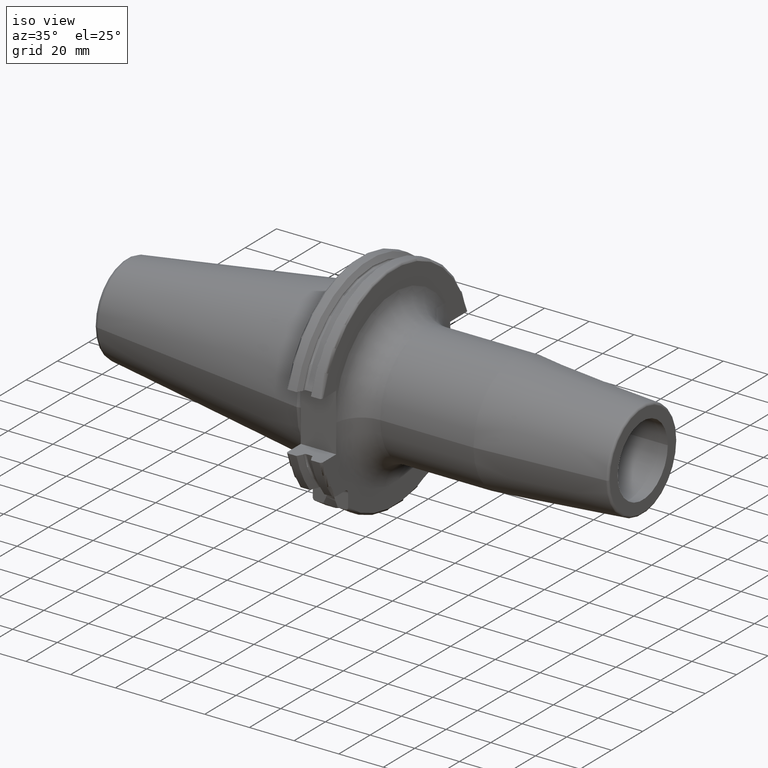
[diagram: clean part render]
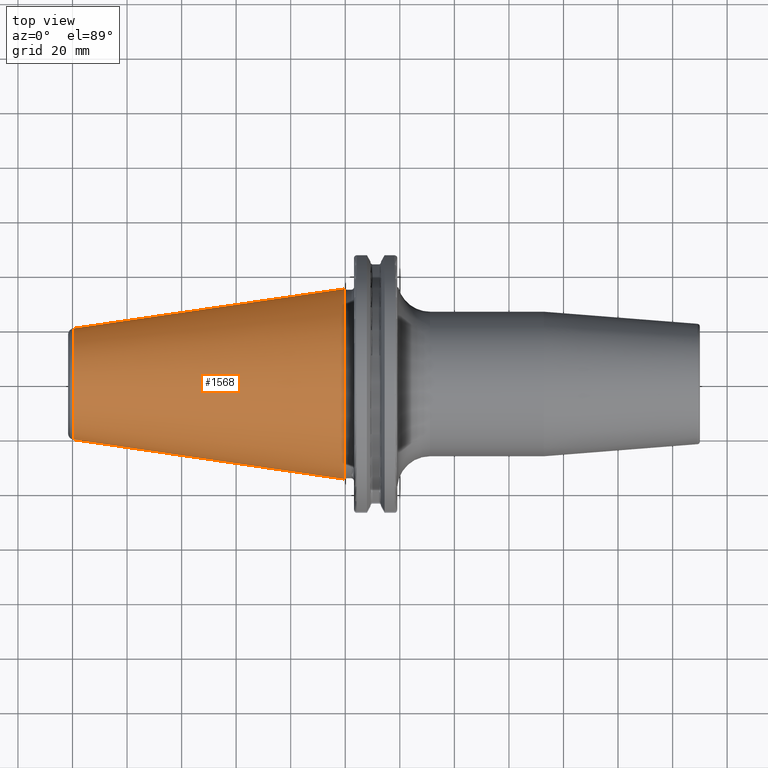
[diagram: tour spotlight — one face highlighted and labeled with its STEP entity id]
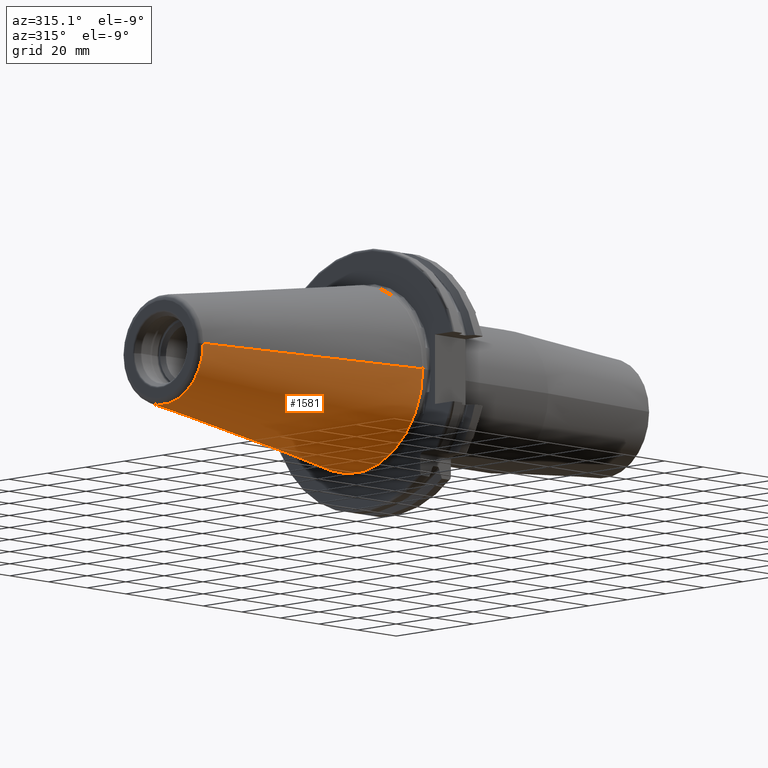
[diagram: tour spotlight — one face highlighted and labeled with its STEP entity id]
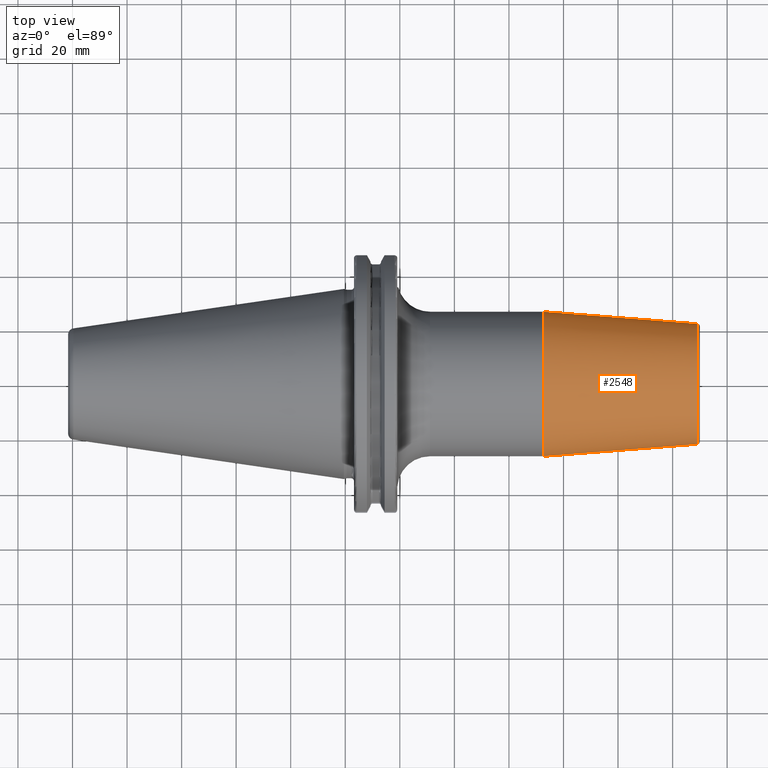
[diagram: tour spotlight — one face highlighted and labeled with its STEP entity id]
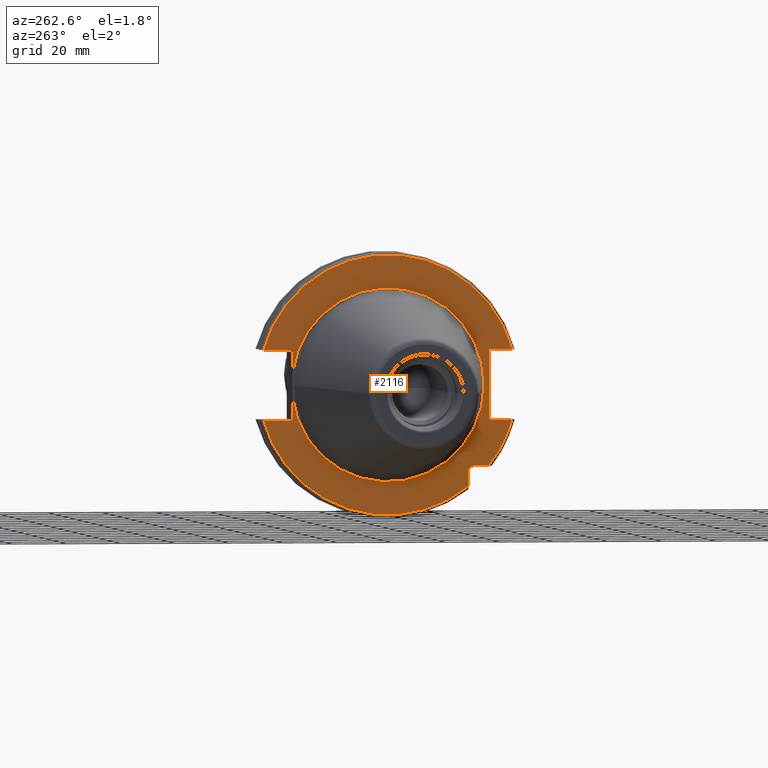
[diagram: tour spotlight — one face highlighted and labeled with its STEP entity id]
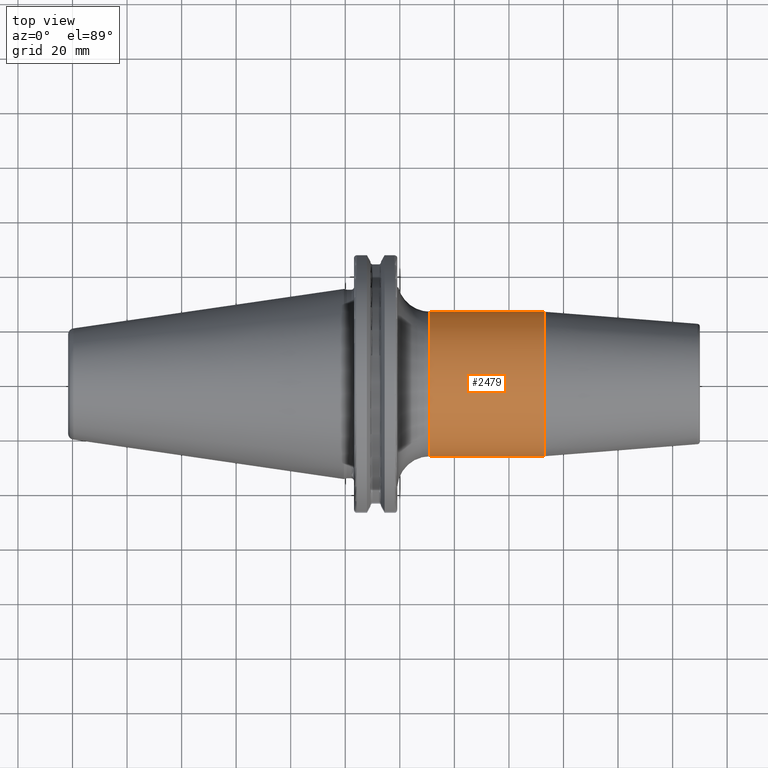
[diagram: tour spotlight — one face highlighted and labeled with its STEP entity id]
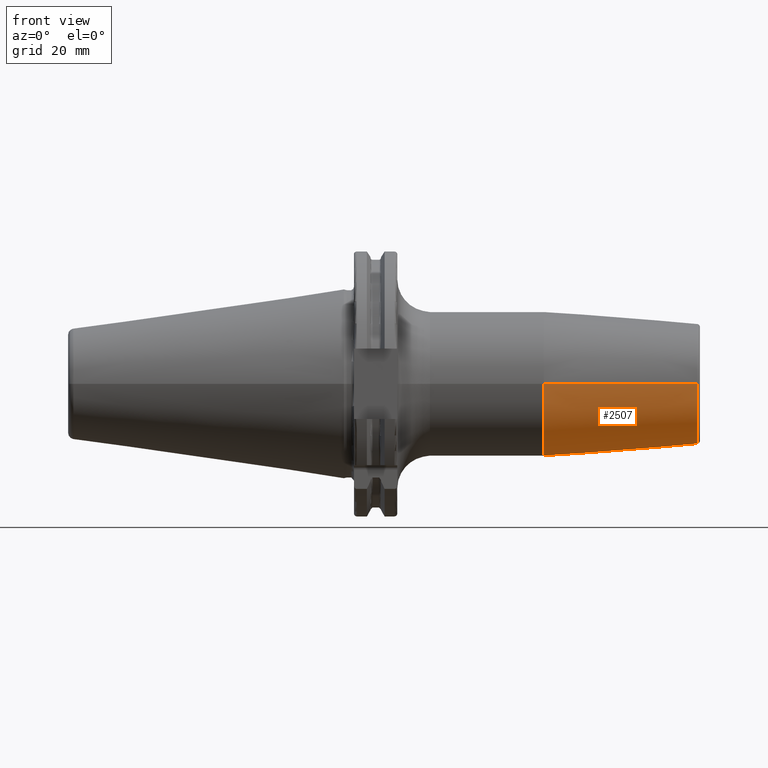
[diagram: tour spotlight — one face highlighted and labeled with its STEP entity id]
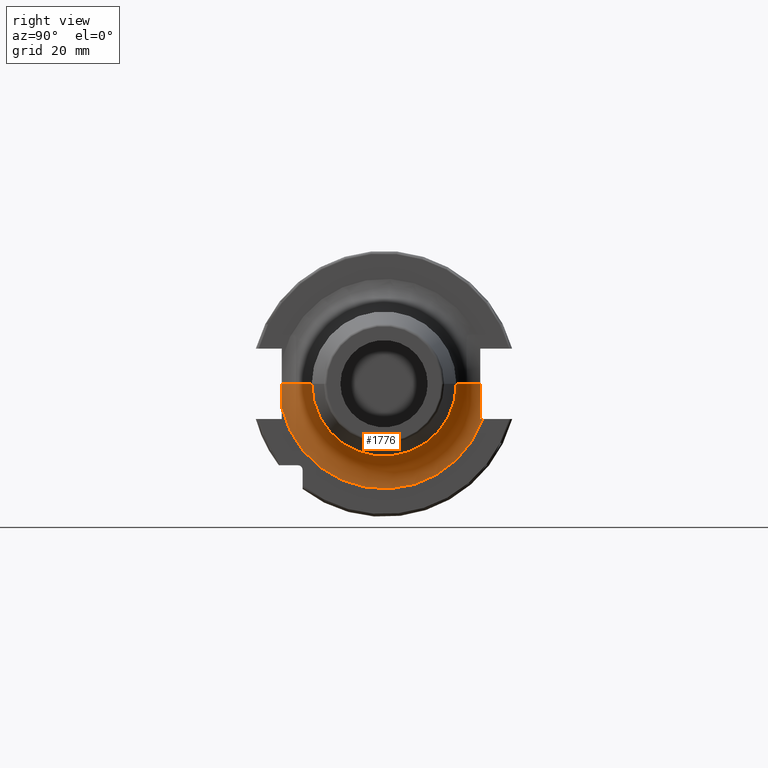
[diagram: tour spotlight — one face highlighted and labeled with its STEP entity id]
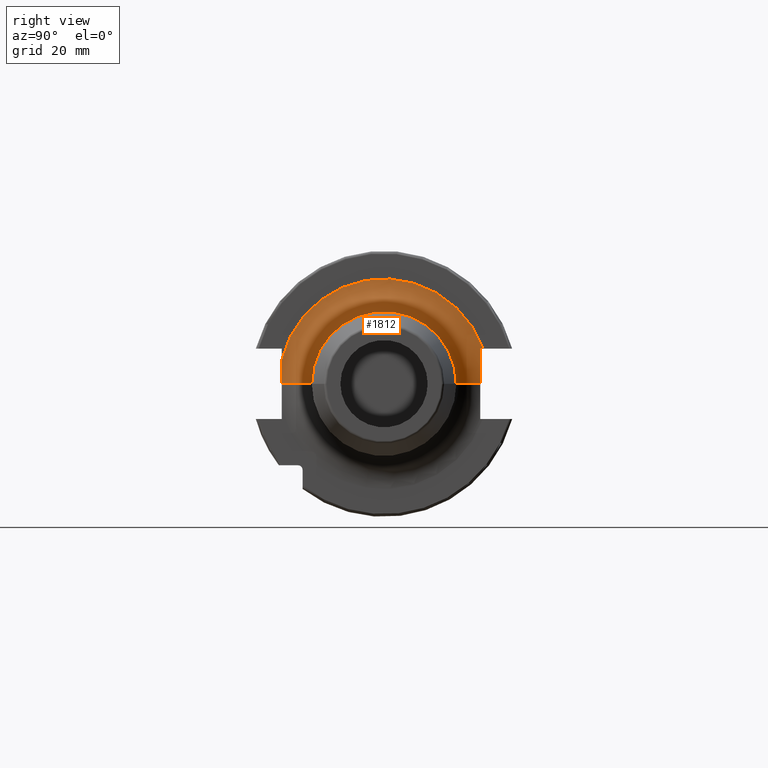
[diagram: tour spotlight — one face highlighted and labeled with its STEP entity id]
A machine part: a face-by-face anatomy tour. The part has 94 B-rep faces; the first image is the clean iso view, then the 8 largest visible faces are spotlighted one at a time (largest first), each with its STEP entity span.

Face 1 — top view, entity #1568. In plain terms, the highlighted conical surface has half-angle 8.298 deg.
Definition (entity closure, byte-faithful):
#37=CARTESIAN_POINT('',(-9.967471700563E1,0.E0,0.E0));
#38=DIRECTION('',(1.E0,0.E0,0.E0));
#39=DIRECTION('',(0.E0,1.E0,0.E0));
#40=AXIS2_PLACEMENT_3D('',#37,#38,#39);
#42=CARTESIAN_POINT('',(-4.896823332305E-1,0.E0,0.E0));
#43=DIRECTION('',(1.E0,0.E0,0.E0));
#44=DIRECTION('',(0.E0,1.E0,0.E0));
#45=AXIS2_PLACEMENT_3D('',#42,#43,#44);
#47=DIRECTION('',(-9.895312636440E-1,-1.443186691705E-1,0.E0));
#48=VECTOR('',#47,1.002343617797E2);
#49=CARTESIAN_POINT('',(-4.896823332305E-1,3.485358204157E1,0.E0));
#50=LINE('',#49,#48);
#51=DIRECTION('',(-9.895312636440E-1,1.443186691705E-1,0.E0));
#52=VECTOR('',#51,1.002343617797E2);
#53=CARTESIAN_POINT('',(-4.896823332305E-1,-3.485358204157E1,0.E0));
#54=LINE('',#53,#52);
#1252=CARTESIAN_POINT('',(-9.967471700563E1,2.038789234437E1,0.E0));
#1254=VERTEX_POINT('',#1252);
#1256=CARTESIAN_POINT('',(-9.967471700563E1,-2.038789234437E1,0.E0));
#1258=VERTEX_POINT('',#1256);
#1320=CARTESIAN_POINT('',(-4.896823332305E-1,3.485358204157E1,0.E0));
#1321=VERTEX_POINT('',#1320);
#1322=CARTESIAN_POINT('',(-4.896823332305E-1,-3.485358204157E1,0.E0));
#1323=VERTEX_POINT('',#1322);
#1554=CARTESIAN_POINT('',(-5.008219966943E1,0.E0,0.E0));
#1555=DIRECTION('',(1.E0,0.E0,0.E0));
#1556=DIRECTION('',(0.E0,-1.E0,0.E0));
#1557=AXIS2_PLACEMENT_3D('',#1554,#1555,#1556);
#1558=CONICAL_SURFACE('',#1557,2.762073719297E1,8.297826828206E0);
#1560=ORIENTED_EDGE('',*,*,#1559,.F.);
#1562=ORIENTED_EDGE('',*,*,#1561,.T.);
#1564=ORIENTED_EDGE('',*,*,#1563,.T.);
#1565=ORIENTED_EDGE('',*,*,#1547,.F.);
#1566=EDGE_LOOP('',(#1560,#1562,#1564,#1565));
#1567=FACE_OUTER_BOUND('',#1566,.F.);
#1568=ADVANCED_FACE('',(#1567),#1558,.T.);
#41=CIRCLE('',#40,2.038789234437E1);
#46=CIRCLE('',#45,3.485358204157E1);
#1547=EDGE_CURVE('',#1254,#1258,#41,.T.);
#1559=EDGE_CURVE('',#1321,#1254,#50,.T.);
#1561=EDGE_CURVE('',#1321,#1323,#46,.T.);
#1563=EDGE_CURVE('',#1323,#1258,#54,.T.);

Face 2 — auxiliary view, entity #1581. In plain terms, the highlighted conical surface has half-angle 8.298 deg.
Definition (entity closure, byte-faithful):
#32=CARTESIAN_POINT('',(-9.967471700563E1,0.E0,0.E0));
#33=DIRECTION('',(-1.E0,0.E0,0.E0));
#34=DIRECTION('',(0.E0,1.E0,0.E0));
#35=AXIS2_PLACEMENT_3D('',#32,#33,#34);
#47=DIRECTION('',(-9.895312636440E-1,-1.443186691705E-1,0.E0));
#48=VECTOR('',#47,1.002343617797E2);
#49=CARTESIAN_POINT('',(-4.896823332305E-1,3.485358204157E1,0.E0));
#50=LINE('',#49,#48);
#51=DIRECTION('',(-9.895312636440E-1,1.443186691705E-1,0.E0));
#52=VECTOR('',#51,1.002343617797E2);
#53=CARTESIAN_POINT('',(-4.896823332305E-1,-3.485358204157E1,0.E0));
#54=LINE('',#53,#52);
#55=CARTESIAN_POINT('',(-4.896823332305E-1,0.E0,0.E0));
#56=DIRECTION('',(-1.E0,0.E0,0.E0));
#57=DIRECTION('',(0.E0,1.E0,0.E0));
#58=AXIS2_PLACEMENT_3D('',#55,#56,#57);
#1252=CARTESIAN_POINT('',(-9.967471700563E1,2.038789234437E1,0.E0));
#1254=VERTEX_POINT('',#1252);
#1256=CARTESIAN_POINT('',(-9.967471700563E1,-2.038789234437E1,0.E0));
#1258=VERTEX_POINT('',#1256);
#1320=CARTESIAN_POINT('',(-4.896823332305E-1,3.485358204157E1,0.E0));
#1321=VERTEX_POINT('',#1320);
#1322=CARTESIAN_POINT('',(-4.896823332305E-1,-3.485358204157E1,0.E0));
#1323=VERTEX_POINT('',#1322);
#1569=CARTESIAN_POINT('',(-5.008219966943E1,0.E0,0.E0));
#1570=DIRECTION('',(1.E0,0.E0,0.E0));
#1571=DIRECTION('',(0.E0,-1.E0,0.E0));
#1572=AXIS2_PLACEMENT_3D('',#1569,#1570,#1571);
#1573=CONICAL_SURFACE('',#1572,2.762073719297E1,8.297826828206E0);
#1574=ORIENTED_EDGE('',*,*,#1559,.T.);
#1575=ORIENTED_EDGE('',*,*,#1536,.T.);
#1576=ORIENTED_EDGE('',*,*,#1563,.F.);
#1578=ORIENTED_EDGE('',*,*,#1577,.F.);
#1579=EDGE_LOOP('',(#1574,#1575,#1576,#1578));
#1580=FACE_OUTER_BOUND('',#1579,.F.);
#1581=ADVANCED_FACE('',(#1580),#1573,.T.);
#36=CIRCLE('',#35,2.038789234437E1);
#59=CIRCLE('',#58,3.485358204157E1);
#1536=EDGE_CURVE('',#1254,#1258,#36,.T.);
#1559=EDGE_CURVE('',#1321,#1254,#50,.T.);
#1563=EDGE_CURVE('',#1323,#1258,#54,.T.);
#1577=EDGE_CURVE('',#1321,#1323,#59,.T.);

Face 3 — top view, entity #2548. In plain terms, the highlighted conical surface has half-angle 4.5 deg.
Definition (entity closure, byte-faithful):
#957=CARTESIAN_POINT('',(7.282207868721E1,0.E0,0.E0));
#958=DIRECTION('',(1.E0,0.E0,0.E0));
#959=DIRECTION('',(0.E0,1.E0,0.E0));
#960=AXIS2_PLACEMENT_3D('',#957,#958,#959);
#985=DIRECTION('',(-9.969173337331E-1,7.845909572785E-2,2.346469821693E-14));
#986=VECTOR('',#985,5.643033630266E1);
#987=CARTESIAN_POINT('',(1.290784590957E2,2.207252684207E1,
-1.320875497604E-12));
#988=LINE('',#987,#986);
#989=DIRECTION('',(-9.969173337331E-1,-7.845909572785E-2,-2.336591030080E-14));
#990=VECTOR('',#989,5.643033630266E1);
#991=CARTESIAN_POINT('',(1.290784590957E2,-2.207252684207E1,
1.315300862274E-12));
#992=LINE('',#991,#990);
#1003=CARTESIAN_POINT('',(1.290784590957E2,0.E0,0.E0));
#1004=DIRECTION('',(-1.E0,0.E0,0.E0));
#1005=DIRECTION('',(0.E0,-1.E0,0.E0));
#1006=AXIS2_PLACEMENT_3D('',#1003,#1004,#1005);
#1472=CARTESIAN_POINT('',(7.282207868721E1,2.65E1,0.E0));
#1473=CARTESIAN_POINT('',(7.282207868721E1,-2.65E1,0.E0));
#1474=VERTEX_POINT('',#1472);
#1475=VERTEX_POINT('',#1473);
#1476=CARTESIAN_POINT('',(1.290784590957E2,2.207252684207E1,0.E0));
#1477=CARTESIAN_POINT('',(1.290784590957E2,-2.207252684207E1,0.E0));
#1478=VERTEX_POINT('',#1476);
#1479=VERTEX_POINT('',#1477);
#2537=CARTESIAN_POINT('',(1.009502688915E2,0.E0,0.E0));
#2538=DIRECTION('',(-1.E0,0.E0,0.E0));
#2539=DIRECTION('',(0.E0,1.E0,0.E0));
#2540=AXIS2_PLACEMENT_3D('',#2537,#2538,#2539);
#2541=CONICAL_SURFACE('',#2540,2.428626342104E1,4.5E0);
#2542=ORIENTED_EDGE('',*,*,#2528,.F.);
#2543=ORIENTED_EDGE('',*,*,#2503,.T.);
#2544=ORIENTED_EDGE('',*,*,#2473,.F.);
#2545=ORIENTED_EDGE('',*,*,#2500,.F.);
#2546=EDGE_LOOP('',(#2542,#2543,#2544,#2545));
#2547=FACE_OUTER_BOUND('',#2546,.F.);
#2548=ADVANCED_FACE('',(#2547),#2541,.T.);
#961=CIRCLE('',#960,2.65E1);
#1007=CIRCLE('',#1006,2.207252684207E1);
#2473=EDGE_CURVE('',#1474,#1475,#961,.T.);
#2500=EDGE_CURVE('',#1478,#1474,#988,.T.);
#2503=EDGE_CURVE('',#1479,#1475,#992,.T.);
#2528=EDGE_CURVE('',#1479,#1478,#1007,.T.);

Face 4 — auxiliary view, entity #2116. In plain terms, the highlighted planar face has unit normal (1, 0, 0).
Definition (entity closure, byte-faithful):
#117=CARTESIAN_POINT('',(3.2E0,0.E0,0.E0));
#118=DIRECTION('',(-1.E0,0.E0,0.E0));
#119=DIRECTION('',(0.E0,9.922698524245E-1,-1.240989120402E-1));
#120=AXIS2_PLACEMENT_3D('',#117,#118,#119);
#499=DIRECTION('',(0.E0,-1.E0,0.E0));
#500=VECTOR('',#499,5.653810627237E0);
#501=CARTESIAN_POINT('',(3.2E0,-3.16E1,-2.985E1));
#502=LINE('',#501,#500);
#503=DIRECTION('',(0.E0,0.E0,1.E0));
#504=VECTOR('',#503,5.653810627237E0);
#505=CARTESIAN_POINT('',(3.2E0,-2.985E1,-3.725381062724E1));
#506=LINE('',#505,#504);
#507=CARTESIAN_POINT('',(3.2E0,0.E0,0.E0));
#508=DIRECTION('',(-1.E0,0.E0,0.E0));
#509=DIRECTION('',(0.E0,9.627964123359E-1,-2.702278083268E-1));
#510=AXIS2_PLACEMENT_3D('',#507,#508,#509);
#512=DIRECTION('',(0.E0,-1.E0,0.E0));
#513=VECTOR('',#512,1.066149373389E1);
#514=CARTESIAN_POINT('',(3.2E0,4.596149373389E1,-1.29E1));
#515=LINE('',#514,#513);
#516=DIRECTION('',(0.E0,0.E0,-1.E0));
#517=VECTOR('',#516,8.485181204172E0);
#518=CARTESIAN_POINT('',(3.2E0,3.53E1,-4.414818795828E0));
#519=LINE('',#518,#517);
#520=DIRECTION('',(0.E0,0.E0,-1.E0));
#521=VECTOR('',#520,8.485181204172E0);
#522=CARTESIAN_POINT('',(3.2E0,3.53E1,1.29E1));
#523=LINE('',#522,#521);
#524=DIRECTION('',(0.E0,-1.E0,0.E0));
#525=VECTOR('',#524,1.066149373389E1);
#526=CARTESIAN_POINT('',(3.2E0,4.596149373389E1,1.29E1));
#527=LINE('',#526,#525);
#528=CARTESIAN_POINT('',(3.2E0,0.E0,0.E0));
#529=DIRECTION('',(1.E0,0.E0,0.E0));
#530=DIRECTION('',(0.E0,9.627964123359E-1,2.702278083268E-1));
#531=AXIS2_PLACEMENT_3D('',#528,#529,#530);
#533=DIRECTION('',(0.E0,1.E0,0.E0));
#534=VECTOR('',#533,8.461493733886E0);
#535=CARTESIAN_POINT('',(3.2E0,-4.596149373389E1,1.29E1));
#536=LINE('',#535,#534);
#537=DIRECTION('',(0.E0,0.E0,1.E0));
#538=VECTOR('',#537,2.58E1);
#539=CARTESIAN_POINT('',(3.2E0,-3.75E1,-1.29E1));
#540=LINE('',#539,#538);
#541=DIRECTION('',(0.E0,1.E0,0.E0));
#542=VECTOR('',#541,8.461493733886E0);
#543=CARTESIAN_POINT('',(3.2E0,-4.596149373389E1,-1.29E1));
#544=LINE('',#543,#542);
#545=CARTESIAN_POINT('',(3.2E0,0.E0,0.E0));
#546=DIRECTION('',(-1.E0,0.E0,0.E0));
#547=DIRECTION('',(0.E0,-7.803888060170E-1,-6.252945797329E-1));
#548=AXIS2_PLACEMENT_3D('',#545,#546,#547);
#559=CARTESIAN_POINT('',(3.2E0,-3.16E1,-3.16E1));
#560=DIRECTION('',(1.E0,0.E0,0.E0));
#561=DIRECTION('',(0.E0,1.E0,0.E0));
#562=AXIS2_PLACEMENT_3D('',#559,#560,#561);
#725=CARTESIAN_POINT('',(3.2E0,-3.725381062724E1,-2.985E1));
#947=CARTESIAN_POINT('',(3.2E0,0.E0,0.E0));
#948=DIRECTION('',(1.E0,0.E0,0.E0));
#949=DIRECTION('',(0.E0,9.922698524245E-1,1.240989120402E-1));
#950=AXIS2_PLACEMENT_3D('',#947,#948,#949);
#1264=CARTESIAN_POINT('',(3.2E0,-3.5575E1,0.E0));
#1266=VERTEX_POINT('',#1264);
#1390=CARTESIAN_POINT('',(3.2E0,4.596149373389E1,1.29E1));
#1391=CARTESIAN_POINT('',(3.2E0,3.53E1,1.29E1));
#1392=VERTEX_POINT('',#1390);
#1393=VERTEX_POINT('',#1391);
#1394=CARTESIAN_POINT('',(3.2E0,3.53E1,4.414818795828E0));
#1395=VERTEX_POINT('',#1394);
#1396=CARTESIAN_POINT('',(3.2E0,3.53E1,-4.414818795828E0));
#1397=CARTESIAN_POINT('',(3.2E0,3.53E1,-1.29E1));
#1398=VERTEX_POINT('',#1396);
#1399=VERTEX_POINT('',#1397);
#1400=CARTESIAN_POINT('',(3.2E0,4.596149373389E1,-1.29E1));
#1401=VERTEX_POINT('',#1400);
#1402=CARTESIAN_POINT('',(3.2E0,-4.596149373389E1,-1.29E1));
#1403=CARTESIAN_POINT('',(3.2E0,-3.75E1,-1.29E1));
#1404=VERTEX_POINT('',#1402);
#1405=VERTEX_POINT('',#1403);
#1406=CARTESIAN_POINT('',(3.2E0,-3.75E1,1.29E1));
#1407=VERTEX_POINT('',#1406);
#1408=CARTESIAN_POINT('',(3.2E0,-4.596149373389E1,1.29E1));
#1409=VERTEX_POINT('',#1408);
#1443=CARTESIAN_POINT('',(3.2E0,-2.985E1,-3.725381062724E1));
#1444=VERTEX_POINT('',#1443);
#1449=CARTESIAN_POINT('',(3.2E0,-2.985E1,-3.16E1));
#1450=CARTESIAN_POINT('',(3.2E0,-3.16E1,-2.985E1));
#1451=VERTEX_POINT('',#1449);
#1452=VERTEX_POINT('',#1450);
#1471=VERTEX_POINT('',#725);
#2087=CARTESIAN_POINT('',(3.2E0,0.E0,0.E0));
#2088=DIRECTION('',(1.E0,0.E0,0.E0));
#2089=DIRECTION('',(0.E0,-1.E0,0.E0));
#2090=AXIS2_PLACEMENT_3D('',#2087,#2088,#2089);
#2091=PLANE('',#2090);
#2093=ORIENTED_EDGE('',*,*,#2092,.F.);
#2095=ORIENTED_EDGE('',*,*,#2094,.F.);
#2097=ORIENTED_EDGE('',*,*,#2096,.F.);
#2099=ORIENTED_EDGE('',*,*,#2098,.F.);
#2100=ORIENTED_EDGE('',*,*,#1688,.T.);
#2101=ORIENTED_EDGE('',*,*,#1673,.F.);
#2102=ORIENTED_EDGE('',*,*,#1650,.T.);
#2104=ORIENTED_EDGE('',*,*,#2103,.F.);
#2105=ORIENTED_EDGE('',*,*,#1668,.F.);
#2106=ORIENTED_EDGE('',*,*,#1843,.F.);
#2107=ORIENTED_EDGE('',*,*,#2082,.T.);
#2108=ORIENTED_EDGE('',*,*,#1884,.T.);
#2109=ORIENTED_EDGE('',*,*,#1789,.F.);
#2111=ORIENTED_EDGE('',*,*,#2110,.F.);
#2113=ORIENTED_EDGE('',*,*,#2112,.F.);
#2114=EDGE_LOOP('',(#2093,#2095,#2097,#2099,#2100,#2101,#2102,#2104,#2105,#2106,
#2107,#2108,#2109,#2111,#2113));
#2115=FACE_OUTER_BOUND('',#2114,.F.);
#2116=ADVANCED_FACE('',(#2115),#2091,.F.);
#121=CIRCLE('',#120,3.5575E1);
#511=CIRCLE('',#510,4.77375E1);
#532=CIRCLE('',#531,4.77375E1);
#549=CIRCLE('',#548,4.77375E1);
#563=CIRCLE('',#562,1.75E0);
#951=CIRCLE('',#950,3.5575E1);
#1650=EDGE_CURVE('',#1398,#1266,#121,.T.);
#1668=EDGE_CURVE('',#1393,#1395,#523,.T.);
#1673=EDGE_CURVE('',#1398,#1399,#519,.T.);
#1688=EDGE_CURVE('',#1401,#1399,#515,.T.);
#1789=EDGE_CURVE('',#1405,#1407,#540,.T.);
#1843=EDGE_CURVE('',#1392,#1393,#527,.T.);
#1884=EDGE_CURVE('',#1409,#1407,#536,.T.);
#2082=EDGE_CURVE('',#1392,#1409,#532,.T.);
#2092=EDGE_CURVE('',#1452,#1471,#502,.T.);
#2094=EDGE_CURVE('',#1451,#1452,#563,.T.);
#2096=EDGE_CURVE('',#1444,#1451,#506,.T.);
#2098=EDGE_CURVE('',#1401,#1444,#511,.T.);
#2103=EDGE_CURVE('',#1395,#1266,#951,.T.);
#2110=EDGE_CURVE('',#1404,#1405,#544,.T.);
#2112=EDGE_CURVE('',#1471,#1404,#549,.T.);

Face 5 — top view, entity #2479. In plain terms, the highlighted cylindrical surface (partial cylindrical patch) has radius 26.5 mm, axis along (1, 0, 0).
Definition (entity closure, byte-faithful):
#952=CARTESIAN_POINT('',(3.105E1,0.E0,0.E0));
#953=DIRECTION('',(1.E0,0.E0,0.E0));
#954=DIRECTION('',(0.E0,1.E0,0.E0));
#955=AXIS2_PLACEMENT_3D('',#952,#953,#954);
#957=CARTESIAN_POINT('',(7.282207868721E1,0.E0,0.E0));
#958=DIRECTION('',(1.E0,0.E0,0.E0));
#959=DIRECTION('',(0.E0,1.E0,0.E0));
#960=AXIS2_PLACEMENT_3D('',#957,#958,#959);
#967=DIRECTION('',(-9.999999992300E-1,2.427432378256E-9,-3.924221130613E-5));
#968=VECTOR('',#967,4.177207871938E1);
#969=CARTESIAN_POINT('',(7.282207868721E1,-2.65E1,0.E0));
#970=LINE('',#969,#968);
#976=DIRECTION('',(-9.999999992300E-1,-2.427432378256E-9,3.924221130611E-5));
#977=VECTOR('',#976,4.177207871938E1);
#978=CARTESIAN_POINT('',(7.282207868721E1,2.65E1,0.E0));
#979=LINE('',#978,#977);
#1472=CARTESIAN_POINT('',(7.282207868721E1,2.65E1,0.E0));
#1473=CARTESIAN_POINT('',(7.282207868721E1,-2.65E1,0.E0));
#1474=VERTEX_POINT('',#1472);
#1475=VERTEX_POINT('',#1473);
#1488=CARTESIAN_POINT('',(3.105E1,-2.65E1,0.E0));
#1489=CARTESIAN_POINT('',(3.105E1,2.65E1,0.E0));
#1490=VERTEX_POINT('',#1488);
#1491=VERTEX_POINT('',#1489);
#2465=CARTESIAN_POINT('',(1.35025E1,0.E0,0.E0));
#2466=DIRECTION('',(1.E0,0.E0,0.E0));
#2467=DIRECTION('',(0.E0,-1.E0,0.E0));
#2468=AXIS2_PLACEMENT_3D('',#2465,#2466,#2467);
#2469=CYLINDRICAL_SURFACE('',#2468,2.65E1);
#2470=ORIENTED_EDGE('',*,*,#1806,.F.);
#2472=ORIENTED_EDGE('',*,*,#2471,.F.);
#2474=ORIENTED_EDGE('',*,*,#2473,.T.);
#2476=ORIENTED_EDGE('',*,*,#2475,.T.);
#2477=EDGE_LOOP('',(#2470,#2472,#2474,#2476));
#2478=FACE_OUTER_BOUND('',#2477,.F.);
#2479=ADVANCED_FACE('',(#2478),#2469,.T.);
#956=CIRCLE('',#955,2.65E1);
#961=CIRCLE('',#960,2.65E1);
#1806=EDGE_CURVE('',#1491,#1490,#956,.T.);
#2471=EDGE_CURVE('',#1474,#1491,#979,.T.);
#2473=EDGE_CURVE('',#1474,#1475,#961,.T.);
#2475=EDGE_CURVE('',#1475,#1490,#970,.T.);

Face 6 — front view, entity #2507. In plain terms, the highlighted conical surface has half-angle 4.5 deg.
Definition (entity closure, byte-faithful):
#971=CARTESIAN_POINT('',(7.282207868721E1,0.E0,0.E0));
#972=DIRECTION('',(-1.E0,0.E0,0.E0));
#973=DIRECTION('',(0.E0,1.E0,0.E0));
#974=AXIS2_PLACEMENT_3D('',#971,#972,#973);
#980=CARTESIAN_POINT('',(1.290784590957E2,0.E0,0.E0));
#981=DIRECTION('',(-1.E0,0.E0,0.E0));
#982=DIRECTION('',(0.E0,1.E0,0.E0));
#983=AXIS2_PLACEMENT_3D('',#980,#981,#982);
#985=DIRECTION('',(-9.969173337331E-1,7.845909572785E-2,2.346469821693E-14));
#986=VECTOR('',#985,5.643033630266E1);
#987=CARTESIAN_POINT('',(1.290784590957E2,2.207252684207E1,
-1.320875497604E-12));
#988=LINE('',#987,#986);
#989=DIRECTION('',(-9.969173337331E-1,-7.845909572785E-2,-2.336591030080E-14));
#990=VECTOR('',#989,5.643033630266E1);
#991=CARTESIAN_POINT('',(1.290784590957E2,-2.207252684207E1,
1.315300862274E-12));
#992=LINE('',#991,#990);
#1472=CARTESIAN_POINT('',(7.282207868721E1,2.65E1,0.E0));
#1473=CARTESIAN_POINT('',(7.282207868721E1,-2.65E1,0.E0));
#1474=VERTEX_POINT('',#1472);
#1475=VERTEX_POINT('',#1473);
#1476=CARTESIAN_POINT('',(1.290784590957E2,2.207252684207E1,0.E0));
#1477=CARTESIAN_POINT('',(1.290784590957E2,-2.207252684207E1,0.E0));
#1478=VERTEX_POINT('',#1476);
#1479=VERTEX_POINT('',#1477);
#2493=CARTESIAN_POINT('',(1.009502688915E2,0.E0,0.E0));
#2494=DIRECTION('',(-1.E0,0.E0,0.E0));
#2495=DIRECTION('',(0.E0,1.E0,0.E0));
#2496=AXIS2_PLACEMENT_3D('',#2493,#2494,#2495);
#2497=CONICAL_SURFACE('',#2496,2.428626342104E1,4.5E0);
#2499=ORIENTED_EDGE('',*,*,#2498,.F.);
#2501=ORIENTED_EDGE('',*,*,#2500,.T.);
#2502=ORIENTED_EDGE('',*,*,#2487,.T.);
#2504=ORIENTED_EDGE('',*,*,#2503,.F.);
#2505=EDGE_LOOP('',(#2499,#2501,#2502,#2504));
#2506=FACE_OUTER_BOUND('',#2505,.F.);
#2507=ADVANCED_FACE('',(#2506),#2497,.T.);
#975=CIRCLE('',#974,2.65E1);
#984=CIRCLE('',#983,2.207252684207E1);
#2487=EDGE_CURVE('',#1474,#1475,#975,.T.);
#2498=EDGE_CURVE('',#1478,#1479,#984,.T.);
#2500=EDGE_CURVE('',#1478,#1474,#988,.T.);
#2503=EDGE_CURVE('',#1479,#1475,#992,.T.);

Face 7 — right view, entity #1776. In plain terms, the highlighted toroidal blend (fillet) surface has major radius 38.5 mm and minor (blend) radius 12 mm.
Definition (entity closure, byte-faithful):
#126=CARTESIAN_POINT('',(1.905E1,0.E0,0.E0));
#127=DIRECTION('',(1.E0,0.E0,0.E0));
#128=DIRECTION('',(0.E0,-9.740227571911E-1,-2.264501456698E-1));
#129=AXIS2_PLACEMENT_3D('',#126,#127,#128);
#168=CARTESIAN_POINT('',(1.909173923321E1,-3.75E1,-4.609148908321E-3));
#169=CARTESIAN_POINT('',(1.909173257439E1,-3.75E1,-6.524612713159E-1));
#170=CARTESIAN_POINT('',(1.908878751441E1,-3.750000017558E1,-1.973005974719E0));
#171=CARTESIAN_POINT('',(1.907662175047E1,-3.749999938546E1,-3.981108997934E0));
#172=CARTESIAN_POINT('',(1.905945285205E1,-3.750000228258E1,-6.158205015502E0));
#173=CARTESIAN_POINT('',(1.905E1,-3.749999508366E1,-7.833713653429E0));
#174=CARTESIAN_POINT('',(1.905E1,-3.749999508366E1,-8.718006206379E0));
#176=CARTESIAN_POINT('',(3.105E1,-3.849999970919E1,-4.732059510132E-3));
#177=DIRECTION('',(0.E0,1.229106366268E-4,-9.999999924465E-1));
#178=DIRECTION('',(-9.965217305657E-1,8.333330909915E-2,1.024255015096E-5));
#179=AXIS2_PLACEMENT_3D('',#176,#177,#178);
#181=CARTESIAN_POINT('',(1.908506987748E1,3.53E1,-1.29E1));
#182=CARTESIAN_POINT('',(1.911130074422E1,3.53E1,-1.190259367515E1));
#183=CARTESIAN_POINT('',(1.918615062163E1,3.53E1,-9.954011799594E0));
#184=CARTESIAN_POINT('',(1.931372287873E1,3.53E1,-7.123640777465E0));
#185=CARTESIAN_POINT('',(1.941452708630E1,3.53E1,-4.518600156820E0));
#186=CARTESIAN_POINT('',(1.947345293102E1,3.53E1,-2.126169375915E0));
#187=CARTESIAN_POINT('',(1.948455742581E1,3.53E1,-6.812804737907E-1));
#188=CARTESIAN_POINT('',(1.948453409026E1,3.53E1,4.342307535141E-3));
#190=CARTESIAN_POINT('',(1.905E1,3.627451494753E1,-1.290002180538E1));
#191=CARTESIAN_POINT('',(1.905E1,3.611016461991E1,-1.290002180538E1));
#192=CARTESIAN_POINT('',(1.905599236746E1,3.578338474467E1,-1.289998909731E1));
#193=CARTESIAN_POINT('',(1.907352003926E1,3.546049088899E1,-1.29E1));
#194=CARTESIAN_POINT('',(1.908506987748E1,3.53E1,-1.29E1));
#206=CARTESIAN_POINT('',(1.948453409026E1,3.53E1,4.342307535141E-3));
#215=CARTESIAN_POINT('',(3.105E1,3.849999970871E1,4.735944443007E-3));
#216=DIRECTION('',(0.E0,-1.230115439742E-4,9.999999924341E-1));
#217=DIRECTION('',(-9.637888258114E-1,-2.666666423927E-1,-3.280307565533E-5));
#218=AXIS2_PLACEMENT_3D('',#215,#216,#217);
#226=CARTESIAN_POINT('',(1.909173923321E1,-3.75E1,-4.609148908321E-3));
#962=CARTESIAN_POINT('',(3.105E1,0.E0,0.E0));
#963=DIRECTION('',(1.E0,0.E0,0.E0));
#964=DIRECTION('',(0.E0,-1.E0,0.E0));
#965=AXIS2_PLACEMENT_3D('',#962,#963,#964);
#1484=CARTESIAN_POINT('',(1.905E1,-3.749987615186E1,-8.718330608288E0));
#1485=CARTESIAN_POINT('',(1.905E1,3.627451358574E1,-1.289998698132E1));
#1486=VERTEX_POINT('',#1484);
#1487=VERTEX_POINT('',#1485);
#1488=CARTESIAN_POINT('',(3.105E1,-2.65E1,0.E0));
#1489=CARTESIAN_POINT('',(3.105E1,2.65E1,0.E0));
#1490=VERTEX_POINT('',#1488);
#1491=VERTEX_POINT('',#1489);
#1504=VERTEX_POINT('',#206);
#1506=VERTEX_POINT('',#181);
#1507=VERTEX_POINT('',#226);
#1758=CARTESIAN_POINT('',(3.105E1,0.E0,0.E0));
#1759=DIRECTION('',(1.E0,0.E0,0.E0));
#1760=DIRECTION('',(0.E0,-1.485959642860E-3,9.999988959614E-1));
#1761=AXIS2_PLACEMENT_3D('',#1758,#1759,#1760);
#1762=TOROIDAL_SURFACE('',#1761,3.85E1,1.2E1);
#1763=ORIENTED_EDGE('',*,*,#1720,.F.);
#1765=ORIENTED_EDGE('',*,*,#1764,.F.);
#1767=ORIENTED_EDGE('',*,*,#1766,.T.);
#1769=ORIENTED_EDGE('',*,*,#1768,.T.);
#1771=ORIENTED_EDGE('',*,*,#1770,.F.);
#1772=ORIENTED_EDGE('',*,*,#1662,.F.);
#1773=ORIENTED_EDGE('',*,*,#1685,.F.);
#1774=EDGE_LOOP('',(#1763,#1765,#1767,#1769,#1771,#1772,#1773));
#1775=FACE_OUTER_BOUND('',#1774,.F.);
#1776=ADVANCED_FACE('',(#1775),#1762,.F.);
#130=CIRCLE('',#129,3.85E1);
#175=B_SPLINE_CURVE_WITH_KNOTS('',3,(#168,#169,#170,#171,#172,#173,#174),
.UNSPECIFIED.,.F.,.F.,(4,1,1,1,4),(0.E0,2.5E-1,5.E-1,7.5E-1,1.E0),
.UNSPECIFIED.);
#180=CIRCLE('',#179,1.2E1);
#189=B_SPLINE_CURVE_WITH_KNOTS('',3,(#181,#182,#183,#184,#185,#186,#187,#188),
.UNSPECIFIED.,.F.,.F.,(4,1,1,1,1,4),(0.E0,2.E-1,4.E-1,6.E-1,8.E-1,1.E0),
.UNSPECIFIED.);
#195=B_SPLINE_CURVE_WITH_KNOTS('',3,(#190,#191,#192,#193,#194),.UNSPECIFIED.,
.F.,.F.,(4,1,4),(0.E0,5.E-1,1.E0),.UNSPECIFIED.);
#219=CIRCLE('',#218,1.2E1);
#966=CIRCLE('',#965,2.65E1);
#1662=EDGE_CURVE('',#1506,#1504,#189,.T.);
#1685=EDGE_CURVE('',#1487,#1506,#195,.T.);
#1720=EDGE_CURVE('',#1486,#1487,#130,.T.);
#1764=EDGE_CURVE('',#1507,#1486,#175,.T.);
#1766=EDGE_CURVE('',#1507,#1490,#180,.T.);
#1768=EDGE_CURVE('',#1490,#1491,#966,.T.);
#1770=EDGE_CURVE('',#1504,#1491,#219,.T.);

Face 8 — right view, entity #1812. In plain terms, the highlighted toroidal blend (fillet) surface has major radius 38.5 mm and minor (blend) radius 12 mm.
Definition (entity closure, byte-faithful):
#151=CARTESIAN_POINT('',(1.905E1,0.E0,0.E0));
#152=DIRECTION('',(1.E0,0.E0,0.E0));
#153=DIRECTION('',(0.E0,9.421950764359E-1,3.350648264739E-1));
#154=AXIS2_PLACEMENT_3D('',#151,#152,#153);
#176=CARTESIAN_POINT('',(3.105E1,-3.849999970919E1,-4.732059510132E-3));
#177=DIRECTION('',(0.E0,1.229106366268E-4,-9.999999924465E-1));
#178=DIRECTION('',(-9.965217305657E-1,8.333330909915E-2,1.024255015096E-5));
#179=AXIS2_PLACEMENT_3D('',#176,#177,#178);
#200=CARTESIAN_POINT('',(1.908506987748E1,3.53E1,1.29E1));
#201=CARTESIAN_POINT('',(1.907352069399E1,3.546048179124E1,1.29E1));
#202=CARTESIAN_POINT('',(1.905599303077E1,3.578337571384E1,1.289997628185E1));
#203=CARTESIAN_POINT('',(1.905E1,3.611013705185E1,1.290004743629E1));
#204=CARTESIAN_POINT('',(1.905E1,3.627449650086E1,1.290004743629E1));
#206=CARTESIAN_POINT('',(1.948453409026E1,3.53E1,4.342307535141E-3));
#207=CARTESIAN_POINT('',(1.948451076802E1,3.53E1,6.895743023072E-1));
#208=CARTESIAN_POINT('',(1.947332061544E1,3.53E1,2.133618128360E0));
#209=CARTESIAN_POINT('',(1.941432184081E1,3.53E1,4.524625712119E0));
#210=CARTESIAN_POINT('',(1.931352878356E1,3.53E1,7.127980880441E0));
#211=CARTESIAN_POINT('',(1.918604869387E1,3.53E1,9.956414542695E0));
#212=CARTESIAN_POINT('',(1.911127863181E1,3.53E1,1.190343448062E1));
#213=CARTESIAN_POINT('',(1.908506987748E1,3.53E1,1.29E1));
#215=CARTESIAN_POINT('',(3.105E1,3.849999970871E1,4.735944443007E-3));
#216=DIRECTION('',(0.E0,-1.230115439742E-4,9.999999924341E-1));
#217=DIRECTION('',(-9.637888258114E-1,-2.666666423927E-1,-3.280307565533E-5));
#218=AXIS2_PLACEMENT_3D('',#215,#216,#217);
#220=CARTESIAN_POINT('',(1.905E1,-3.749998345262E1,8.718832889522E0));
#221=CARTESIAN_POINT('',(1.905E1,-3.749998345262E1,7.832933292564E0));
#222=CARTESIAN_POINT('',(1.905948438553E1,-3.750000768271E1,6.153500017850E0));
#223=CARTESIAN_POINT('',(1.907667275755E1,-3.749999793158E1,3.974532629768E0));
#224=CARTESIAN_POINT('',(1.908882413565E1,-3.750000059098E1,1.965011639233E0));
#225=CARTESIAN_POINT('',(1.909174589594E1,-3.75E1,6.436229094288E-1));
#226=CARTESIAN_POINT('',(1.909173923321E1,-3.75E1,-4.609148908321E-3));
#952=CARTESIAN_POINT('',(3.105E1,0.E0,0.E0));
#953=DIRECTION('',(1.E0,0.E0,0.E0));
#954=DIRECTION('',(0.E0,1.E0,0.E0));
#955=AXIS2_PLACEMENT_3D('',#952,#953,#954);
#1488=CARTESIAN_POINT('',(3.105E1,-2.65E1,0.E0));
#1489=CARTESIAN_POINT('',(3.105E1,2.65E1,0.E0));
#1490=VERTEX_POINT('',#1488);
#1491=VERTEX_POINT('',#1489);
#1492=CARTESIAN_POINT('',(1.905E1,3.627451044278E1,1.289999581925E1));
#1493=CARTESIAN_POINT('',(1.905E1,-3.749936218230E1,8.720541033701E0));
#1494=VERTEX_POINT('',#1492);
#1495=VERTEX_POINT('',#1493);
#1504=VERTEX_POINT('',#206);
#1505=VERTEX_POINT('',#213);
#1507=VERTEX_POINT('',#226);
#1796=CARTESIAN_POINT('',(3.105E1,0.E0,0.E0));
#1797=DIRECTION('',(1.E0,0.E0,0.E0));
#1798=DIRECTION('',(0.E0,1.485959642860E-3,-9.999988959614E-1));
#1799=AXIS2_PLACEMENT_3D('',#1796,#1797,#1798);
#1800=TOROIDAL_SURFACE('',#1799,3.85E1,1.2E1);
#1801=ORIENTED_EDGE('',*,*,#1745,.F.);
#1803=ORIENTED_EDGE('',*,*,#1802,.F.);
#1804=ORIENTED_EDGE('',*,*,#1664,.F.);
#1805=ORIENTED_EDGE('',*,*,#1770,.T.);
#1807=ORIENTED_EDGE('',*,*,#1806,.T.);
#1808=ORIENTED_EDGE('',*,*,#1766,.F.);
#1809=ORIENTED_EDGE('',*,*,#1783,.F.);
#1810=EDGE_LOOP('',(#1801,#1803,#1804,#1805,#1807,#1808,#1809));
#1811=FACE_OUTER_BOUND('',#1810,.F.);
#1812=ADVANCED_FACE('',(#1811),#1800,.F.);
#155=CIRCLE('',#154,3.85E1);
#180=CIRCLE('',#179,1.2E1);
#205=B_SPLINE_CURVE_WITH_KNOTS('',3,(#200,#201,#202,#203,#204),.UNSPECIFIED.,
.F.,.F.,(4,1,4),(0.E0,5.E-1,1.E0),.UNSPECIFIED.);
#214=B_SPLINE_CURVE_WITH_KNOTS('',3,(#206,#207,#208,#209,#210,#211,#212,#213),
.UNSPECIFIED.,.F.,.F.,(4,1,1,1,1,4),(0.E0,2.E-1,4.E-1,6.E-1,8.E-1,1.E0),
.UNSPECIFIED.);
#219=CIRCLE('',#218,1.2E1);
#227=B_SPLINE_CURVE_WITH_KNOTS('',3,(#220,#221,#222,#223,#224,#225,#226),
.UNSPECIFIED.,.F.,.F.,(4,1,1,1,4),(0.E0,2.5E-1,5.E-1,7.5E-1,1.E0),
.UNSPECIFIED.);
#956=CIRCLE('',#955,2.65E1);
#1664=EDGE_CURVE('',#1504,#1505,#214,.T.);
#1745=EDGE_CURVE('',#1494,#1495,#155,.T.);
#1766=EDGE_CURVE('',#1507,#1490,#180,.T.);
#1770=EDGE_CURVE('',#1504,#1491,#219,.T.);
#1783=EDGE_CURVE('',#1495,#1507,#227,.T.);
#1802=EDGE_CURVE('',#1505,#1494,#205,.T.);
#1806=EDGE_CURVE('',#1491,#1490,#956,.T.);